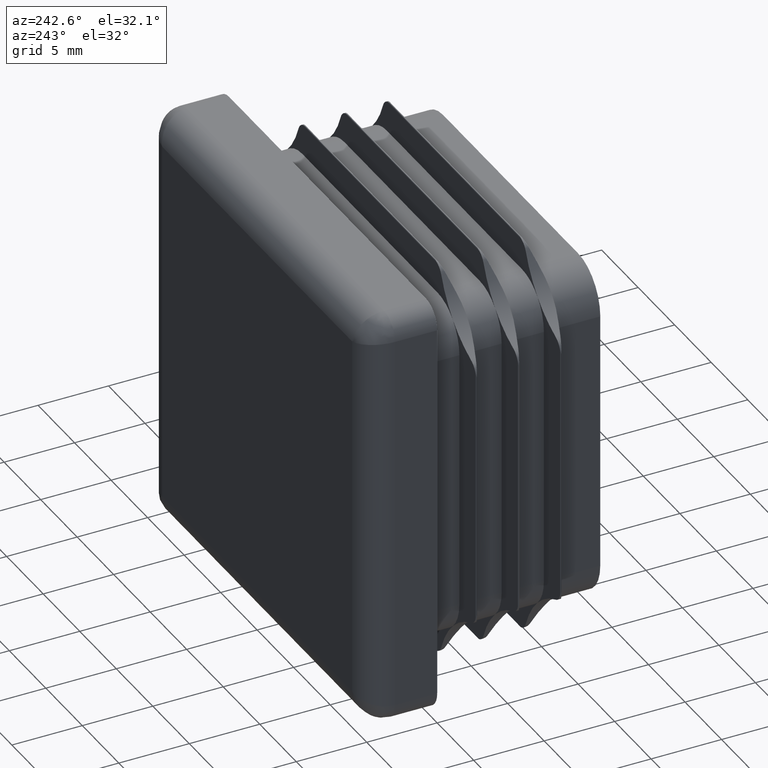
[diagram: clean part render]
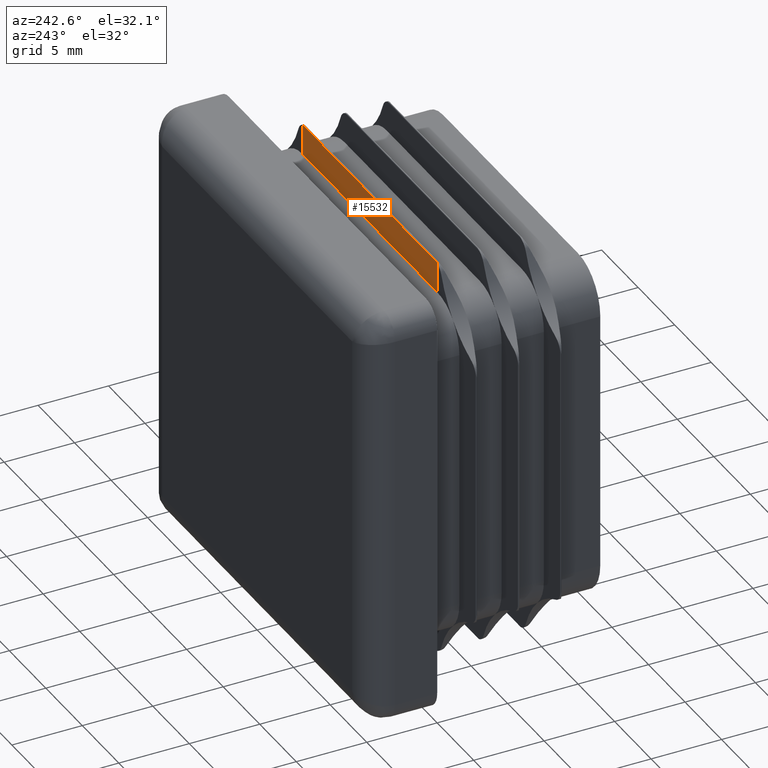
[diagram: same view with one face highlighted and labeled with its STEP entity id]
A machine part, auxiliary view. The second image highlights one B-rep face of the part: STEP entity #15532.
In plain terms, the highlighted planar face has unit normal (0, -1, 0).
Its self-contained STEP definition (entity closure, byte-faithful):
#1090 = VERTEX_POINT ( 'NONE', #11247 ) ;
#1881 = VECTOR ( 'NONE', #20185, 1000.000000000000000 ) ;
#2063 = VERTEX_POINT ( 'NONE', #10059 ) ;
#2892 = ORIENTED_EDGE ( 'NONE', *, *, #18006, .F. ) ;
#3002 = ORIENTED_EDGE ( 'NONE', *, *, #4258, .T. ) ;
#3136 = LINE ( 'NONE', #12173, #1881 ) ;
#3384 = DIRECTION ( 'NONE',  ( 1.000000000000000000, 0.000000000000000000, 0.000000000000000000 ) ) ;
#3499 = EDGE_LOOP ( 'NONE', ( #12778, #4833, #2892, #10763, #18146, #3002 ) ) ;
#4258 = EDGE_CURVE ( 'NONE', #13939, #17532, #13196, .T. ) ;
#4807 = CARTESIAN_POINT ( 'NONE',  ( 9.249999999999969802, -3.000000000000000888, 14.40981028720142731 ) ) ;
#4833 = ORIENTED_EDGE ( 'NONE', *, *, #17239, .T. ) ;
#4870 = VECTOR ( 'NONE', #18559, 1000.000000000000000 ) ;
#5237 = AXIS2_PLACEMENT_3D ( 'NONE', #12793, #8115, #14582 ) ;
#5684 = DIRECTION ( 'NONE',  ( 0.000000000000000000, -1.000000000000000000, 0.000000000000000000 ) ) ;
#5707 = VECTOR ( 'NONE', #16685, 1000.000000000000000 ) ;
#5948 = FACE_OUTER_BOUND ( 'NONE', #3499, .T. ) ;
#7319 = EDGE_CURVE ( 'NONE', #2063, #13939, #17772, .T. ) ;
#7912 = CARTESIAN_POINT ( 'NONE',  ( -9.250000000000010658, -3.000000000000000888, 14.45000000000002061 ) ) ;
#8115 = DIRECTION ( 'NONE',  ( 0.000000000000000000, -1.000000000000000000, 0.000000000000000000 ) ) ;
#8263 = VECTOR ( 'NONE', #3384, 1000.000000000000000 ) ;
#8742 = CARTESIAN_POINT ( 'NONE',  ( 9.249999999999969802, -3.000000000000004441, 12.24999999999999645 ) ) ;
#9699 = AXIS2_PLACEMENT_3D ( 'NONE', #16682, #18058, #14794 ) ;
#9804 = EDGE_CURVE ( 'NONE', #15113, #17532, #17243, .T. ) ;
#10059 = CARTESIAN_POINT ( 'NONE',  ( -9.250000000000012434, -3.000000000000000888, 14.40981028720140955 ) ) ;
#10763 = ORIENTED_EDGE ( 'NONE', *, *, #13073, .F. ) ;
#10822 = CARTESIAN_POINT ( 'NONE',  ( -9.250000000000012434, -3.000000000000000888, 12.24999999999999467 ) ) ;
#11247 = CARTESIAN_POINT ( 'NONE',  ( -9.250000000000012434, -3.000000000000007994, 12.24999999999999645 ) ) ;
#12173 = CARTESIAN_POINT ( 'NONE',  ( 9.249999999999969802, -3.000000000000000888, 12.24999999999999467 ) ) ;
#12632 = AXIS2_PLACEMENT_3D ( 'NONE', #18202, #5684, #15077 ) ;
#12778 = ORIENTED_EDGE ( 'NONE', *, *, #9804, .F. ) ;
#12793 = CARTESIAN_POINT ( 'NONE',  ( 8.834975613604884259, -3.000000000000000888, 13.50000000000008882 ) ) ;
#13073 = EDGE_CURVE ( 'NONE', #2063, #1090, #15334, .T. ) ;
#13196 = LINE ( 'NONE', #7912, #8263 ) ;
#13939 = VERTEX_POINT ( 'NONE', #14483 ) ;
#14260 = LINE ( 'NONE', #10822, #4870 ) ;
#14483 = CARTESIAN_POINT ( 'NONE',  ( -9.147225513525013341, -3.000000000000000888, 14.45000000000002061 ) ) ;
#14582 = DIRECTION ( 'NONE',  ( 0.000000000000000000, 0.000000000000000000, -1.000000000000000000 ) ) ;
#14794 = DIRECTION ( 'NONE',  ( 0.000000000000000000, 0.000000000000000000, -1.000000000000000000 ) ) ;
#15077 = DIRECTION ( 'NONE',  ( 0.000000000000000000, -0.000000000000000000, -1.000000000000000000 ) ) ;
#15113 = VERTEX_POINT ( 'NONE', #4807 ) ;
#15334 = LINE ( 'NONE', #16612, #5707 ) ;
#15532 = ADVANCED_FACE ( 'NONE', ( #5948 ), #16696, .F. ) ;
#16612 = CARTESIAN_POINT ( 'NONE',  ( -9.250000000000012434, -3.000000000000000888, 12.24999999999999645 ) ) ;
#16682 = CARTESIAN_POINT ( 'NONE',  ( -8.834975613604884259, -3.000000000000000888, 13.50000000000008882 ) ) ;
#16685 = DIRECTION ( 'NONE',  ( -4.688441826964345284E-16, -0.000000000000000000, -1.000000000000000000 ) ) ;
#16696 = PLANE ( 'NONE',  #12632 ) ;
#17239 = EDGE_CURVE ( 'NONE', #15113, #19834, #3136, .T. ) ;
#17243 = CIRCLE ( 'NONE', #5237, 1.000000000000000888 ) ;
#17532 = VERTEX_POINT ( 'NONE', #18111 ) ;
#17772 = CIRCLE ( 'NONE', #9699, 1.000000000000000888 ) ;
#18006 = EDGE_CURVE ( 'NONE', #1090, #19834, #14260, .T. ) ;
#18058 = DIRECTION ( 'NONE',  ( -0.000000000000000000, 1.000000000000000000, -0.000000000000000000 ) ) ;
#18111 = CARTESIAN_POINT ( 'NONE',  ( 9.147225513525013341, -3.000000000000000888, 14.45000000000002061 ) ) ;
#18146 = ORIENTED_EDGE ( 'NONE', *, *, #7319, .T. ) ;
#18202 = CARTESIAN_POINT ( 'NONE',  ( -9.250000000000012434, -3.000000000000000888, 12.24999999999999467 ) ) ;
#18559 = DIRECTION ( 'NONE',  ( 1.000000000000000000, 0.000000000000000000, 0.000000000000000000 ) ) ;
#19834 = VERTEX_POINT ( 'NONE', #8742 ) ;
#20185 = DIRECTION ( 'NONE',  ( -4.688441826964345284E-16, -0.000000000000000000, -1.000000000000000000 ) ) ;